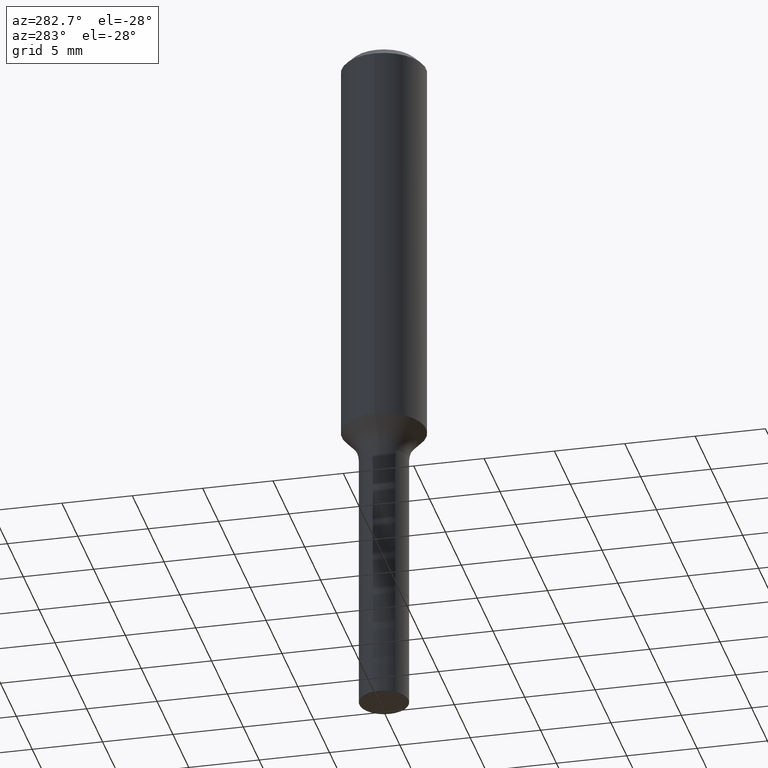
[diagram: clean part render]
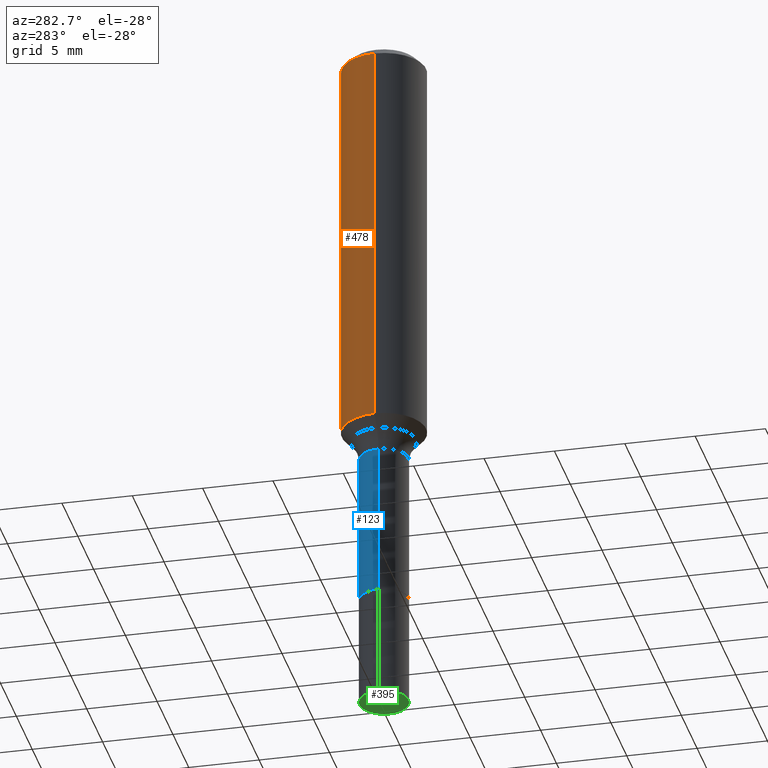
[diagram: same view with three faces highlighted in distinct colors, each labeled with its STEP entity id]
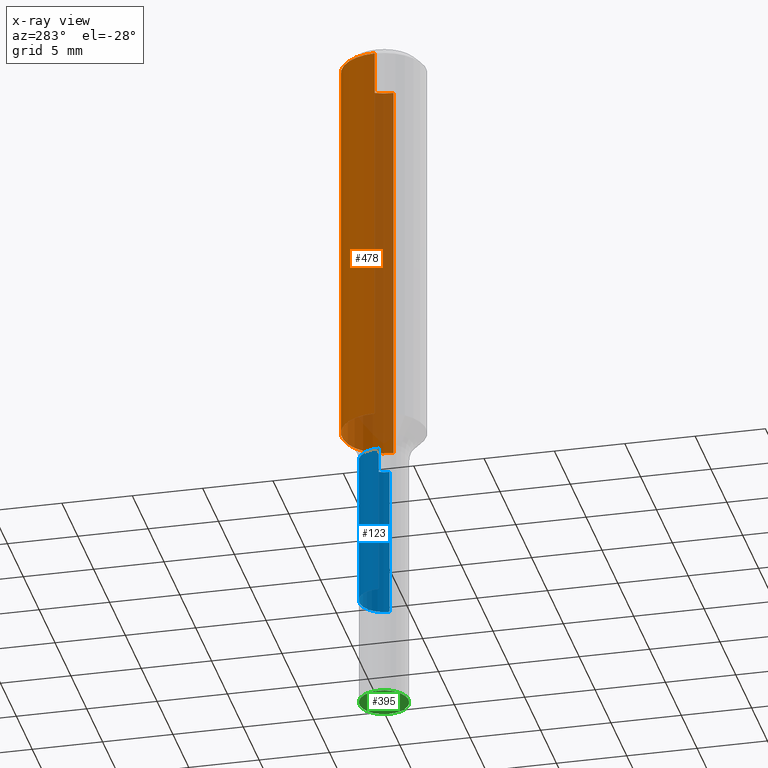
[diagram: x-ray of the same camera — body ghosted, the three highlighted faces saturated]
A machine part, auxiliary view with three faces highlighted in distinct colors.
The next image is the same camera in x-ray (body ghosted, the three faces saturated) — at least one of them is partly hidden behind the body in this view.
Their STEP definitions:

[orange] entity #478 — the highlighted cylindrical surface (partial cylindrical patch) has radius 2.9997 mm, axis along (-0, 0, 1).
#7 = CARTESIAN_POINT ( 'NONE',  ( 0.1180999999999999966, -9.071566814582237199E-16, -0.02362000000000014435 ) ) ;
#10 = ORIENTED_EDGE ( 'NONE', *, *, #152, .T. ) ;
#13 = CIRCLE ( 'NONE', #172, 0.1180999999999999966 ) ;
#41 = VERTEX_POINT ( 'NONE', #106 ) ;
#68 = DIRECTION ( 'NONE',  ( -2.445468806185136877E-29, 3.491481338843145188E-15, 1.000000000000000000 ) ) ;
#73 = VECTOR ( 'NONE', #514, 39.37007874015748143 ) ;
#81 = DIRECTION ( 'NONE',  ( -2.445468806185136597E-29, 3.491481338843145583E-15, 1.000000000000000000 ) ) ;
#89 = DIRECTION ( 'NONE',  ( -2.445468806185136597E-29, 3.491481338843145583E-15, 1.000000000000000000 ) ) ;
#106 = CARTESIAN_POINT ( 'NONE',  ( -0.1181000000000001354, -3.127963074443632070E-15, -1.136226621417590010 ) ) ;
#113 = DIRECTION ( 'NONE',  ( 1.000000000000000000, -6.982962677686266711E-15, 0.000000000000000000 ) ) ;
#130 = VERTEX_POINT ( 'NONE', #481 ) ;
#152 = EDGE_CURVE ( 'NONE', #213, #41, #409, .T. ) ;
#171 = FACE_OUTER_BOUND ( 'NONE', #512, .T. ) ;
#172 = AXIS2_PLACEMENT_3D ( 'NONE', #398, #81, #113 ) ;
#181 = AXIS2_PLACEMENT_3D ( 'NONE', #335, #89, #192 ) ;
#192 = DIRECTION ( 'NONE',  ( 1.000000000000000000, -6.982962677686266711E-15, 4.876176775795936353E-29 ) ) ;
#206 = CARTESIAN_POINT ( 'NONE',  ( 2.778606759433844860E-29, -3.967114045376311056E-15, -1.136226621417590010 ) ) ;
#213 = VERTEX_POINT ( 'NONE', #434 ) ;
#216 = CARTESIAN_POINT ( 'NONE',  ( 0.1181000000000000660, -8.246878922347485584E-16, 5.758764772215003944E-30 ) ) ;
#250 = AXIS2_PLACEMENT_3D ( 'NONE', #206, #405, #418 ) ;
#298 = EDGE_CURVE ( 'NONE', #439, #130, #13, .T. ) ;
#311 = VECTOR ( 'NONE', #68, 39.37007874015748143 ) ;
#334 = ORIENTED_EDGE ( 'NONE', *, *, #298, .F. ) ;
#335 = CARTESIAN_POINT ( 'NONE',  ( 0.000000000000000000, 0.000000000000000000, 0.000000000000000000 ) ) ;
#340 = EDGE_CURVE ( 'NONE', #213, #439, #423, .T. ) ;
#370 = ORIENTED_EDGE ( 'NONE', *, *, #511, .T. ) ;
#398 = CARTESIAN_POINT ( 'NONE',  ( 5.776197320209328408E-31, -8.246878922347560526E-17, -0.02362000000000014435 ) ) ;
#405 = DIRECTION ( 'NONE',  ( -2.445468806185136597E-29, 3.491481338843145583E-15, 1.000000000000000000 ) ) ;
#409 = CIRCLE ( 'NONE', #250, 0.1181000000000001354 ) ;
#414 = ORIENTED_EDGE ( 'NONE', *, *, #340, .F. ) ;
#418 = DIRECTION ( 'NONE',  ( 1.000000000000000000, -6.982962677686269077E-15, 0.000000000000000000 ) ) ;
#423 = LINE ( 'NONE', #216, #73 ) ;
#425 = LINE ( 'NONE', #498, #311 ) ;
#434 = CARTESIAN_POINT ( 'NONE',  ( 0.1181000000000001354, -4.791801937611060107E-15, -1.136226621417590010 ) ) ;
#439 = VERTEX_POINT ( 'NONE', #7 ) ;
#455 = CYLINDRICAL_SURFACE ( 'NONE', #181, 0.1181000000000000660 ) ;
#478 = ADVANCED_FACE ( 'NONE', ( #171 ), #455, .T. ) ;
#481 = CARTESIAN_POINT ( 'NONE',  ( -0.1180999999999999966, -1.185640446367213876E-15, -0.02362000000000014435 ) ) ;
#498 = CARTESIAN_POINT ( 'NONE',  ( -0.1181000000000000660, 8.391509709326787887E-16, -5.809262341591047287E-30 ) ) ;
#511 = EDGE_CURVE ( 'NONE', #41, #130, #425, .T. ) ;
#512 = EDGE_LOOP ( 'NONE', ( #10, #370, #334, #414 ) ) ;
#514 = DIRECTION ( 'NONE',  ( -2.445468806185136877E-29, 3.491481338843145188E-15, 1.000000000000000000 ) ) ;

[blue] entity #123 — the highlighted cylindrical surface (edge-blend (fillet) strip) has radius 1.7501 mm, axis along (-0, 0, 1).
#15 = LINE ( 'NONE', #315, #287 ) ;
#17 = CYLINDRICAL_SURFACE ( 'NONE', #451, 0.06889999999999997515 ) ;
#19 = CARTESIAN_POINT ( 'NONE',  ( 2.984694677948959472E-29, -4.261352974058059028E-15, -1.220499999999999918 ) ) ;
#23 = DIRECTION ( 'NONE',  ( -2.445468806185136877E-29, 3.491481338843145188E-15, 1.000000000000000000 ) ) ;
#25 = CARTESIAN_POINT ( 'NONE',  ( 4.042359936624030960E-29, -5.771418653107719568E-15, -1.653000000000000025 ) ) ;
#29 = EDGE_CURVE ( 'NONE', #433, #173, #382, .T. ) ;
#40 = CARTESIAN_POINT ( 'NONE',  ( -0.06890000000000001679, -4.526821868644179362E-15, -1.653000000000000025 ) ) ;
#57 = DIRECTION ( 'NONE',  ( 1.000000000000000000, -6.982962677686267499E-15, 4.876176775795935793E-29 ) ) ;
#58 = CARTESIAN_POINT ( 'NONE',  ( 0.06889999999999996128, -4.742479102550642766E-15, -1.220499999999999918 ) ) ;
#63 = DIRECTION ( 'NONE',  ( -2.445468806185136877E-29, 3.491481338843145188E-15, 1.000000000000000000 ) ) ;
#66 = VERTEX_POINT ( 'NONE', #58 ) ;
#71 = EDGE_CURVE ( 'NONE', #151, #66, #15, .T. ) ;
#84 = EDGE_CURVE ( 'NONE', #66, #173, #352, .T. ) ;
#117 = AXIS2_PLACEMENT_3D ( 'NONE', #19, #235, #360 ) ;
#120 = ORIENTED_EDGE ( 'NONE', *, *, #84, .F. ) ;
#123 = ADVANCED_FACE ( 'NONE', ( #389 ), #17, .T. ) ;
#151 = VERTEX_POINT ( 'NONE', #257 ) ;
#153 = DIRECTION ( 'NONE',  ( -2.445468806185136597E-29, 3.491481338843145583E-15, 1.000000000000000000 ) ) ;
#173 = VERTEX_POINT ( 'NONE', #501 ) ;
#235 = DIRECTION ( 'NONE',  ( -2.445468806185136597E-29, 3.491481338843145583E-15, 1.000000000000000000 ) ) ;
#257 = CARTESIAN_POINT ( 'NONE',  ( 0.06890000000000001679, -6.252544781600303306E-15, -1.653000000000000025 ) ) ;
#271 = ORIENTED_EDGE ( 'NONE', *, *, #29, .T. ) ;
#279 = CARTESIAN_POINT ( 'NONE',  ( 0.000000000000000000, 0.000000000000000000, 0.000000000000000000 ) ) ;
#287 = VECTOR ( 'NONE', #63, 39.37007874015748143 ) ;
#295 = EDGE_LOOP ( 'NONE', ( #390, #271, #120, #485 ) ) ;
#315 = CARTESIAN_POINT ( 'NONE',  ( 0.06889999999999997515, -4.811261284925836399E-16, 3.359685798523398567E-30 ) ) ;
#318 = CARTESIAN_POINT ( 'NONE',  ( -0.06889999999999997515, 4.895639449387088515E-16, -3.389146277185628616E-30 ) ) ;
#336 = VECTOR ( 'NONE', #23, 39.37007874015748143 ) ;
#352 = CIRCLE ( 'NONE', #117, 0.06889999999999996128 ) ;
#360 = DIRECTION ( 'NONE',  ( 1.000000000000000000, -6.982962677686269866E-15, 0.000000000000000000 ) ) ;
#382 = LINE ( 'NONE', #318, #336 ) ;
#389 = FACE_OUTER_BOUND ( 'NONE', #295, .T. ) ;
#390 = ORIENTED_EDGE ( 'NONE', *, *, #507, .T. ) ;
#397 = AXIS2_PLACEMENT_3D ( 'NONE', #25, #153, #472 ) ;
#421 = CIRCLE ( 'NONE', #397, 0.06890000000000001679 ) ;
#433 = VERTEX_POINT ( 'NONE', #40 ) ;
#436 = DIRECTION ( 'NONE',  ( -2.445468806185136597E-29, 3.491481338843145583E-15, 1.000000000000000000 ) ) ;
#451 = AXIS2_PLACEMENT_3D ( 'NONE', #279, #436, #57 ) ;
#472 = DIRECTION ( 'NONE',  ( 1.000000000000000000, -6.982962677686264344E-15, 0.000000000000000000 ) ) ;
#485 = ORIENTED_EDGE ( 'NONE', *, *, #71, .F. ) ;
#501 = CARTESIAN_POINT ( 'NONE',  ( -0.06889999999999996128, -4.526821868644180150E-15, -1.220499999999999918 ) ) ;
#507 = EDGE_CURVE ( 'NONE', #151, #433, #421, .T. ) ;

[green] entity #395 — the highlighted planar face has unit normal (0, -0, -1).
#3 = DIRECTION ( 'NONE',  ( 2.438088387897960049E-29, -3.491481338843145188E-15, -1.000000000000000000 ) ) ;
#32 = AXIS2_PLACEMENT_3D ( 'NONE', #53, #488, #212 ) ;
#53 = CARTESIAN_POINT ( 'NONE',  ( 4.813905344975441835E-29, -6.872981015512731707E-15, -1.968500000000000139 ) ) ;
#55 = CARTESIAN_POINT ( 'NONE',  ( 4.813905344975441835E-29, -6.872981015512731707E-15, -1.968500000000000139 ) ) ;
#64 = DIRECTION ( 'NONE',  ( 1.000000000000000000, -6.982962677686267499E-15, 0.000000000000000000 ) ) ;
#146 = DIRECTION ( 'NONE',  ( -2.445468806185136597E-29, 3.491481338843145583E-15, 1.000000000000000000 ) ) ;
#158 = CIRCLE ( 'NONE', #32, 0.06890000000000012781 ) ;
#182 = EDGE_CURVE ( 'NONE', #275, #449, #328, .T. ) ;
#184 = ORIENTED_EDGE ( 'NONE', *, *, #394, .F. ) ;
#186 = ORIENTED_EDGE ( 'NONE', *, *, #182, .F. ) ;
#212 = DIRECTION ( 'NONE',  ( 1.000000000000000000, -6.982962677686267499E-15, 0.000000000000000000 ) ) ;
#214 = CARTESIAN_POINT ( 'NONE',  ( 4.813905344975441835E-29, -6.872981015512731707E-15, -1.968500000000000139 ) ) ;
#224 = FACE_OUTER_BOUND ( 'NONE', #456, .T. ) ;
#243 = CARTESIAN_POINT ( 'NONE',  ( -0.06890000000000012781, -5.833508759706226453E-15, -1.968500000000000139 ) ) ;
#258 = DIRECTION ( 'NONE',  ( -1.000000000000000000, 6.982962677686265922E-15, -4.876176775795935793E-29 ) ) ;
#275 = VERTEX_POINT ( 'NONE', #243 ) ;
#281 = AXIS2_PLACEMENT_3D ( 'NONE', #55, #146, #64 ) ;
#328 = CIRCLE ( 'NONE', #281, 0.06890000000000012781 ) ;
#330 = PLANE ( 'NONE',  #337 ) ;
#337 = AXIS2_PLACEMENT_3D ( 'NONE', #214, #3, #258 ) ;
#394 = EDGE_CURVE ( 'NONE', #449, #275, #158, .T. ) ;
#395 = ADVANCED_FACE ( 'NONE', ( #224 ), #330, .T. ) ;
#449 = VERTEX_POINT ( 'NONE', #484 ) ;
#456 = EDGE_LOOP ( 'NONE', ( #184, #186 ) ) ;
#484 = CARTESIAN_POINT ( 'NONE',  ( 0.06890000000000012781, -7.354107144005317023E-15, -1.968500000000000139 ) ) ;
#488 = DIRECTION ( 'NONE',  ( -2.445468806185136597E-29, 3.491481338843145583E-15, 1.000000000000000000 ) ) ;